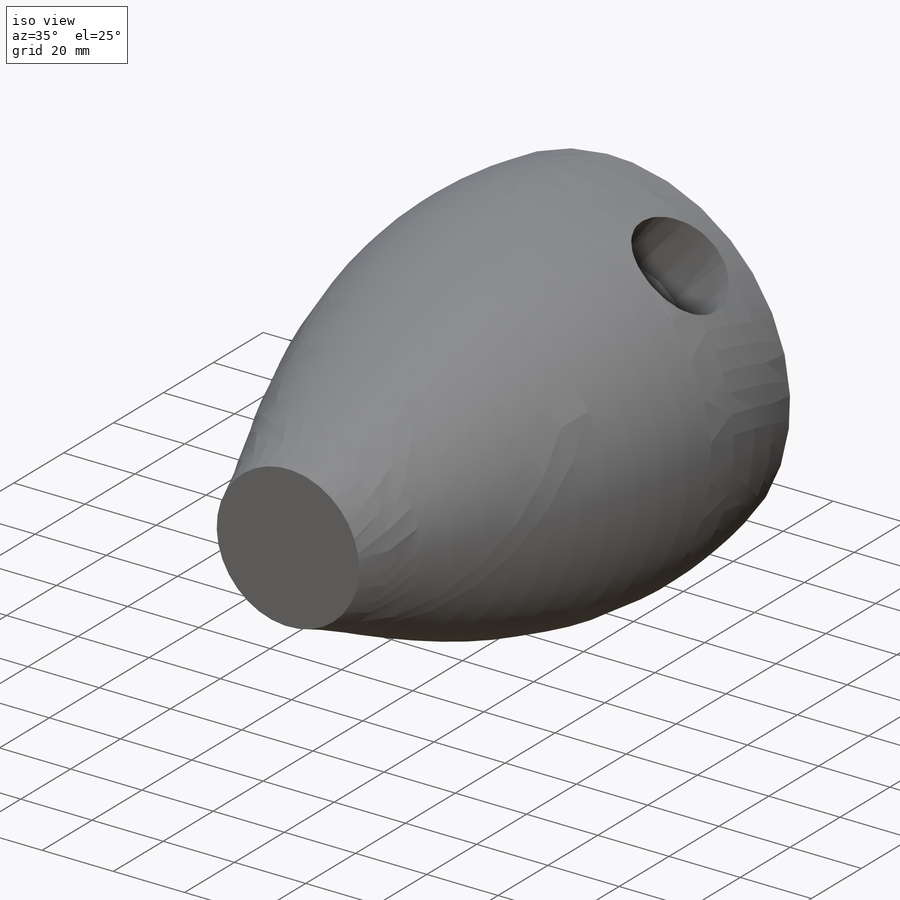
[diagram: iso view]
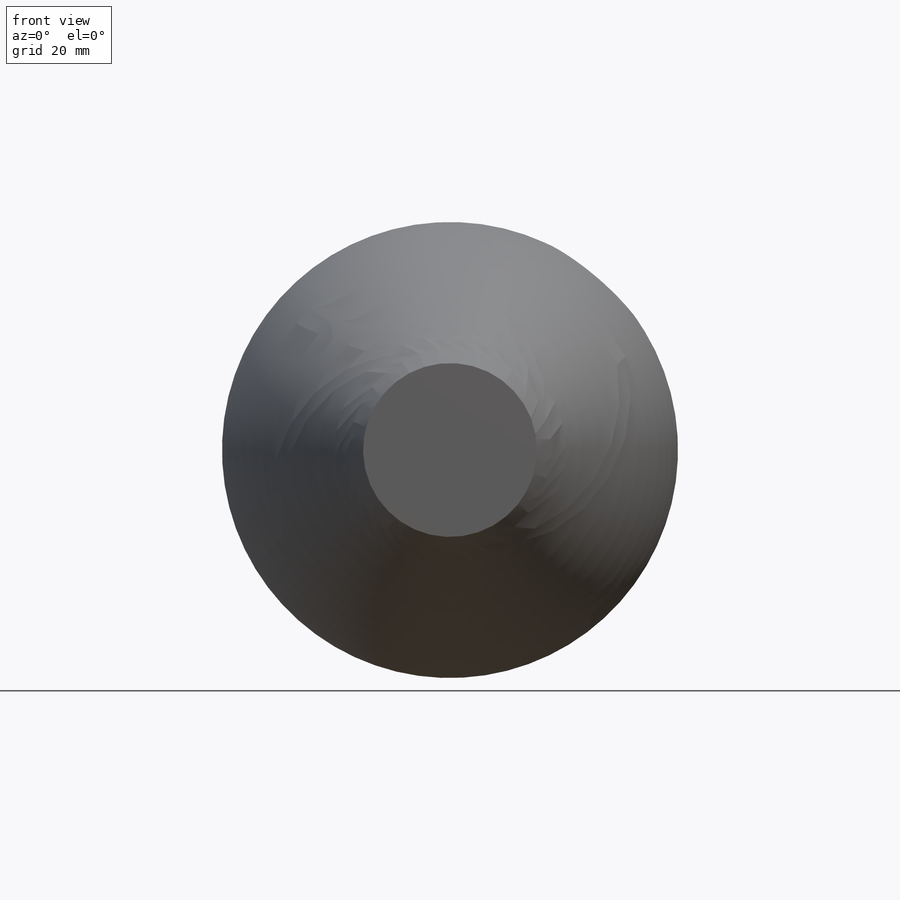
[diagram: front view]
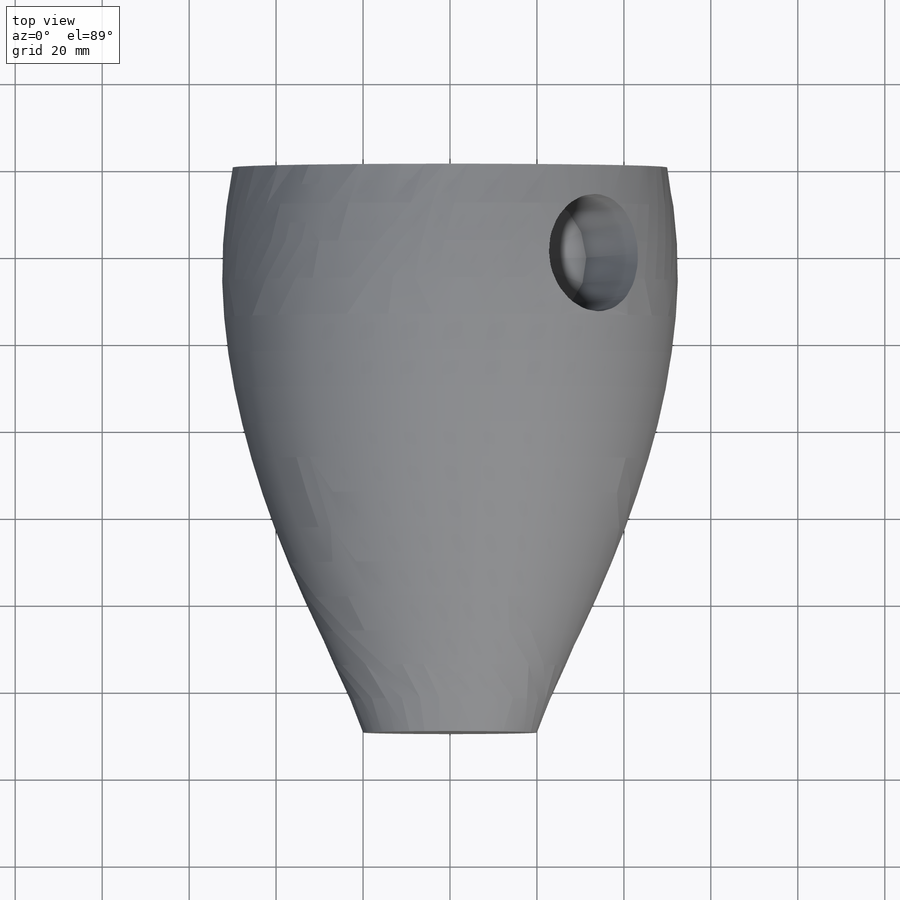
[diagram: top view]
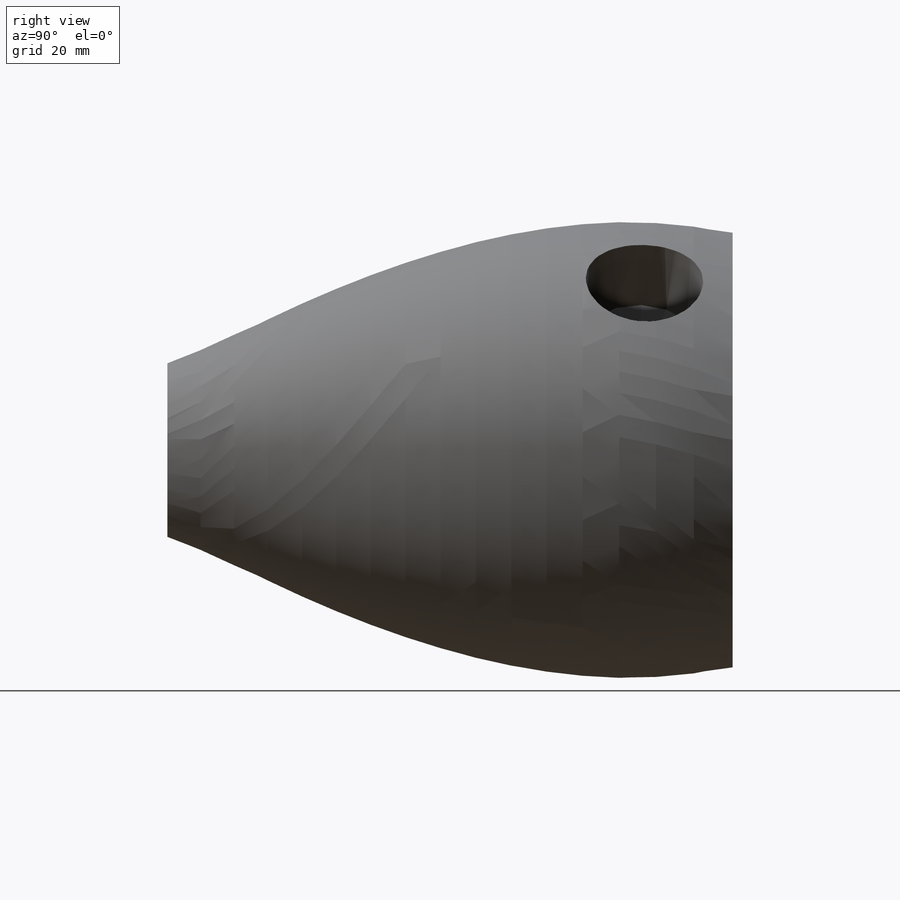
[diagram: right view]
SOLIDWORKS PART (.sldprt)
format: sldprt  version: not decoded by parser v0  size: 273,408 bytes
history: native  units: mm
features: plane x5, sketch x5, material x1, hole x1 + 1 further entry (+8 scaffold rows collapsed)
feature tree (21):
  scaffold x8  (default folders/planes/origin — collapsed)
  material  "Material <nicht festgelegt>"
  "Beschriftungen"  RD1=100mm RD2=100mm RD3=40mm
  plane  "Vorne"
  plane  "Oben"
  plane  "Rechts"
  sketch  "Skizze2"  dims[D1=~52.324506mm]
  plane  "Ebene1"  Offset=50mm
  plane  "Ebene2"  Offset=80mm
  sketch  "Skizze3"  dims[D1=100.0mm]
  sketch  "Skizze4"  dims[D1=30.0mm]
  hole  "Durchgangsloch für M251"  Diameter=27mm Depth=20mm
  sketch  "3D-Skizze1"
  sketch  "Skizze5"  dims[hole-wizard template sketch: 46 standard entries collapsed; hole parameters kept: c15.Bohrerdurchmesser=27.0mm c15.Bohrungstiefe=20.0mm c15.D3=~14.816244mm c15.Spitzenwinkel=118.0deg]
decode coverage: 5 of 6 modeling features carry decoded parameters; 1 rows unclassified (native names shown)
note: ~ marks probable driven/reference dimensions
note: suppression state not decoded; provenance and decode notes live in map.json
